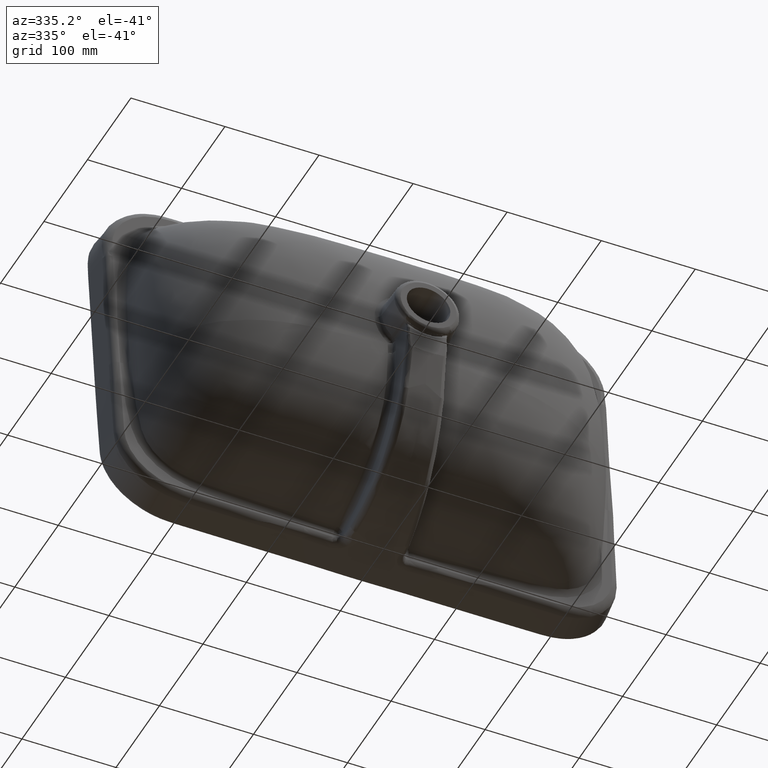
[diagram: clean part render]
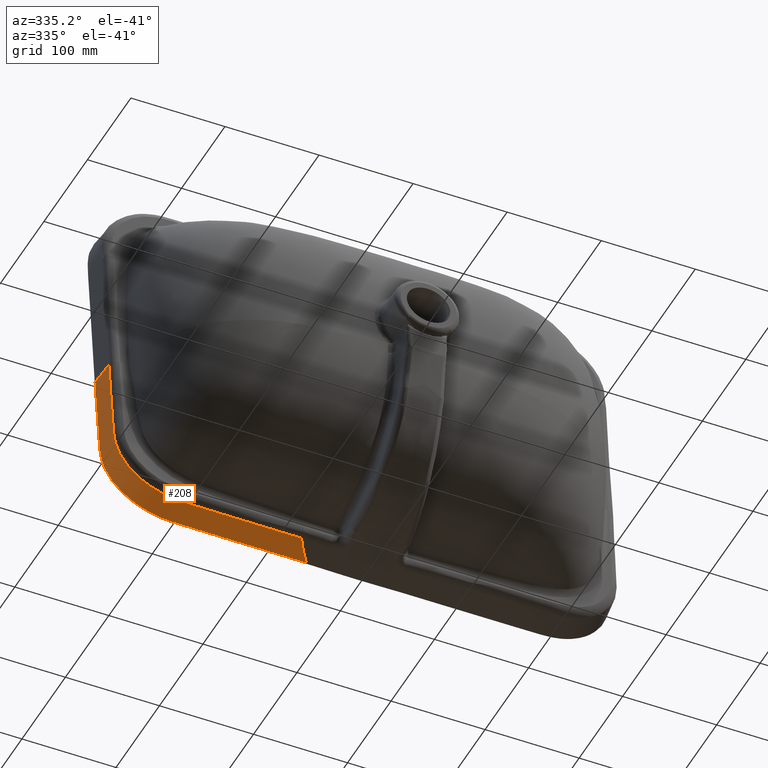
[diagram: same view with one face highlighted and labeled with its STEP entity id]
A machine part, auxiliary view. The second image highlights one B-rep face of the part: STEP entity #208.
In plain terms, the highlighted face is a freeform B-spline surface patch.
Its self-contained STEP definition (entity closure, byte-faithful):
#208=ADVANCED_FACE('',(#491),#366,.F.);
#366=B_SPLINE_SURFACE_WITH_KNOTS('',3,3,((#8555,#8556,#8557,#8558,#8559,
#8560,#8561,#8562,#8563,#8564,#8565,#8566,#8567,#8568,#8569,#8570,#8571,
#8572,#8573,#8574,#8575,#8576,#8577,#8578,#8579,#8580,#8581,#8582,#8583,
#8584,#8585,#8586,#8587,#8588,#8589,#8590,#8591,#8592,#8593,#8594,#8595,
#8596,#8597,#8598,#8599,#8600),(#8601,#8602,#8603,#8604,#8605,#8606,#8607,
#8608,#8609,#8610,#8611,#8612,#8613,#8614,#8615,#8616,#8617,#8618,#8619,
#8620,#8621,#8622,#8623,#8624,#8625,#8626,#8627,#8628,#8629,#8630,#8631,
#8632,#8633,#8634,#8635,#8636,#8637,#8638,#8639,#8640,#8641,#8642,#8643,
#8644,#8645,#8646),(#8647,#8648,#8649,#8650,#8651,#8652,#8653,#8654,#8655,
#8656,#8657,#8658,#8659,#8660,#8661,#8662,#8663,#8664,#8665,#8666,#8667,
#8668,#8669,#8670,#8671,#8672,#8673,#8674,#8675,#8676,#8677,#8678,#8679,
#8680,#8681,#8682,#8683,#8684,#8685,#8686,#8687,#8688,#8689,#8690,#8691,
#8692),(#8693,#8694,#8695,#8696,#8697,#8698,#8699,#8700,#8701,#8702,#8703,
#8704,#8705,#8706,#8707,#8708,#8709,#8710,#8711,#8712,#8713,#8714,#8715,
#8716,#8717,#8718,#8719,#8720,#8721,#8722,#8723,#8724,#8725,#8726,#8727,
#8728,#8729,#8730,#8731,#8732,#8733,#8734,#8735,#8736,#8737,#8738)),
 .UNSPECIFIED.,.F.,.F.,.F.,(4,4),(4,3,3,3,3,3,3,3,3,3,3,3,3,3,3,4),(0.,
1.),(0.,0.113841471851795,0.202707436585057,0.247140418951689,0.269356910135004,
0.29157340131832,0.336006383684951,0.380439366051582,0.469305330784844,
0.558171295518107,0.602604277884738,0.624820769068054,0.647037260251369,
0.735903224984631,0.824769189717894,1.),.UNSPECIFIED.);
#491=FACE_OUTER_BOUND('',#658,.T.);
#658=EDGE_LOOP('',(#929,#930,#931,#932));
#929=ORIENTED_EDGE('',*,*,#1961,.F.);
#930=ORIENTED_EDGE('',*,*,#1965,.T.);
#931=ORIENTED_EDGE('',*,*,#1966,.T.);
#932=ORIENTED_EDGE('',*,*,#1967,.F.);
#1700=VERTEX_POINT('',#8162);
#1701=VERTEX_POINT('',#8167);
#1702=VERTEX_POINT('',#8485);
#1703=VERTEX_POINT('',#8490);
#1961=EDGE_CURVE('',#1700,#1701,#2367,.T.);
#1965=EDGE_CURVE('',#1700,#1702,#2371,.T.);
#1966=EDGE_CURVE('',#1702,#1703,#2372,.T.);
#1967=EDGE_CURVE('',#1701,#1703,#2373,.T.);
#2367=B_SPLINE_CURVE_WITH_KNOTS('',3,(#8163,#8164,#8165,#8166),
 .UNSPECIFIED.,.F.,.F.,(4,4),(0.,1.),.UNSPECIFIED.);
#2371=B_SPLINE_CURVE_WITH_KNOTS('',3,(#8457,#8458,#8459,#8460,#8461,#8462,
#8463,#8464,#8465,#8466,#8467,#8468,#8469,#8470,#8471,#8472,#8473,#8474,
#8475,#8476,#8477,#8478,#8479,#8480,#8481,#8482,#8483,#8484),
 .UNSPECIFIED.,.F.,.F.,(4,2,2,2,2,2,2,2,2,2,2,2,2,4),(0.,0.125,0.25,0.28125,
0.3125,0.34375,0.375,0.4375,0.5,0.53125,0.562500000000001,0.625000000000001,
0.75,1.),.UNSPECIFIED.);
#2372=B_SPLINE_CURVE_WITH_KNOTS('',3,(#8486,#8487,#8488,#8489),
 .UNSPECIFIED.,.F.,.F.,(4,4),(0.,1.),.UNSPECIFIED.);
#2373=B_SPLINE_CURVE_WITH_KNOTS('',3,(#8491,#8492,#8493,#8494,#8495,#8496,
#8497,#8498,#8499,#8500,#8501,#8502,#8503,#8504,#8505,#8506,#8507,#8508,
#8509,#8510,#8511,#8512,#8513,#8514,#8515,#8516,#8517,#8518,#8519,#8520,
#8521,#8522,#8523,#8524,#8525,#8526,#8527,#8528,#8529,#8530,#8531,#8532,
#8533,#8534,#8535,#8536,#8537,#8538,#8539,#8540,#8541,#8542,#8543,#8544,
#8545,#8546,#8547,#8548,#8549,#8550,#8551,#8552,#8553,#8554),
 .UNSPECIFIED.,.F.,.F.,(4,3,3,3,3,3,3,3,3,3,3,3,3,3,3,3,3,3,3,3,3,4),(0.,
0.119738183245951,0.182614027299812,0.245489871353672,0.276927793380603,
0.308365715407533,0.324084676420998,0.339803637434463,0.371241559461394,
0.402679481488324,0.434117403515254,0.465555325542185,0.496993247569115,
0.528431169596045,0.559869091622976,0.575588052636441,0.591307013649906,
0.622744935676836,0.654182857703767,0.685620779730697,0.748496623784558,
1.),.UNSPECIFIED.);
#8162=CARTESIAN_POINT('',(-270.666545541426,-83.7650270052956,6.40828159922137));
#8163=CARTESIAN_POINT('',(-270.666545541425,-83.7650270052956,6.40828159922142));
#8164=CARTESIAN_POINT('',(-269.74517938515,-83.765026998237,-2.18492493005655));
#8165=CARTESIAN_POINT('',(-268.82381322888,-83.7650269988999,-10.7781314593345));
#8166=CARTESIAN_POINT('',(-267.902447072615,-83.7650270072841,-19.3713379886124));
#8167=CARTESIAN_POINT('',(-267.902452639837,-83.7650270101199,-19.3713385855324));
#8457=CARTESIAN_POINT('',(-270.666545541426,-83.7650270052956,6.40828159922176));
#8458=CARTESIAN_POINT('',(-270.674309589723,-69.2236112741996,6.40828177356795));
#8459=CARTESIAN_POINT('',(-270.664818720807,-54.6822440296241,6.40828163263583));
#8460=CARTESIAN_POINT('',(-270.526117770362,-25.5998459528701,6.40828152459902));
#8461=CARTESIAN_POINT('',(-270.315765389975,-11.0636207077367,6.40830054668641));
#8462=CARTESIAN_POINT('',(-270.21287748705,7.11526889921919,6.40826462704014));
#8463=CARTESIAN_POINT('',(-270.224171440184,10.7530966233166,6.40822434133488));
#8464=CARTESIAN_POINT('',(-269.891609584764,18.0059107850169,6.40831883117201));
#8465=CARTESIAN_POINT('',(-269.515964595142,21.618852715985,6.40850912436562));
#8466=CARTESIAN_POINT('',(-268.166095392366,28.8062392468214,6.40893659364012));
#8467=CARTESIAN_POINT('',(-267.181747384368,32.4193746586652,6.40921081727599));
#8468=CARTESIAN_POINT('',(-264.601748167314,39.4092180874217,6.40993638834409));
#8469=CARTESIAN_POINT('',(-263.037609951247,42.7566687283321,6.41025539627529));
#8470=CARTESIAN_POINT('',(-257.575228316996,52.3848219509918,6.4109528944646));
#8471=CARTESIAN_POINT('',(-252.825960616613,58.3028713648195,6.41129176999349));
#8472=CARTESIAN_POINT('',(-241.927889033463,68.2726044110554,6.41221513600539));
#8473=CARTESIAN_POINT('',(-235.60883533299,72.4553309740522,6.41277084967195));
#8474=CARTESIAN_POINT('',(-225.553606640994,77.1343699451603,6.41298701371356));
#8475=CARTESIAN_POINT('',(-222.09440984863,78.4435699712544,6.41294158184629));
#8476=CARTESIAN_POINT('',(-214.953628350956,80.5435742694845,6.41278563707318));
#8477=CARTESIAN_POINT('',(-211.279420030817,81.3218334568945,6.41273761494005));
#8478=CARTESIAN_POINT('',(-200.337270487939,82.7717361009534,6.41292928291443));
#8479=CARTESIAN_POINT('',(-193.014647153608,82.7054867479508,6.41280108006652));
#8480=CARTESIAN_POINT('',(-171.052611122274,82.7230444660742,6.41280521789457));
#8481=CARTESIAN_POINT('',(-156.414493701561,82.8548764111963,6.41281640679837));
#8482=CARTESIAN_POINT('',(-112.492309247166,82.959978574201,6.4128166603026));
#8483=CARTESIAN_POINT('',(-83.2092846077133,82.9493790632545,6.41281629749348));
#8484=CARTESIAN_POINT('',(-53.9268646740659,82.9473609098091,6.41281631165607));
#8485=CARTESIAN_POINT('',(-53.926525442944,82.9473599422791,6.41281758508996));
#8486=CARTESIAN_POINT('',(-53.9267205460793,82.9473784647662,6.41298373256873));
#8487=CARTESIAN_POINT('',(-59.4697813501899,82.2722290070181,-0.0258891858707982));
#8488=CARTESIAN_POINT('',(-65.1344053927425,81.3718169060609,-8.61500698249011));
#8489=CARTESIAN_POINT('',(-70.9200883722619,80.2454962937917,-19.3543696574589));
#8490=CARTESIAN_POINT('',(-70.9224597435606,80.2456273057072,-19.3531078580575));
#8491=CARTESIAN_POINT('',(-267.902447177191,-83.7650270073387,-19.3713379998251));
#8492=CARTESIAN_POINT('',(-267.909232148961,-71.0658299576927,-19.3713374185155));
#8493=CARTESIAN_POINT('',(-267.901081376627,-58.3615733694927,-19.3713369319198));
#8494=CARTESIAN_POINT('',(-267.854521342236,-45.6528061765984,-19.3713377946432));
#8495=CARTESIAN_POINT('',(-267.830072153329,-38.979291993609,-19.3713382476688));
#8496=CARTESIAN_POINT('',(-267.792230830486,-32.3010695390893,-19.3713380791787));
#8497=CARTESIAN_POINT('',(-267.740202059008,-25.6252022055257,-19.371338085424));
#8498=CARTESIAN_POINT('',(-267.68817328753,-18.9493348719621,-19.3713380916694));
#8499=CARTESIAN_POINT('',(-267.615069515998,-12.2661868253253,-19.3713251759906));
#8500=CARTESIAN_POINT('',(-267.547260111999,-5.6125643795333,-19.3713321391007));
#8501=CARTESIAN_POINT('',(-267.51335541,-2.28575315663731,-19.3713356206558));
#8502=CARTESIAN_POINT('',(-267.481158008631,1.02241004668787,-19.3713437688214));
#8503=CARTESIAN_POINT('',(-267.46462652949,4.34268601224635,-19.371387551015));
#8504=CARTESIAN_POINT('',(-267.44809505035,7.66296197780484,-19.3714313332085));
#8505=CARTESIAN_POINT('',(-267.456285322168,11.0789304060905,-19.371571043497));
#8506=CARTESIAN_POINT('',(-267.275302273507,14.6978111385538,-19.3713401543624));
#8507=CARTESIAN_POINT('',(-267.184810749177,16.5072515047855,-19.3712247097952));
#8508=CARTESIAN_POINT('',(-267.038128634579,18.3779591985422,-19.3709949691726));
#8509=CARTESIAN_POINT('',(-266.81263377611,20.248558410447,-19.3706100286551));
#8510=CARTESIAN_POINT('',(-266.58713891764,22.1191576223517,-19.3702250881376));
#8511=CARTESIAN_POINT('',(-266.287337194617,23.9873748068763,-19.3697557471228));
#8512=CARTESIAN_POINT('',(-265.907972337498,25.8377067308683,-19.3692894813439));
#8513=CARTESIAN_POINT('',(-265.149242623258,29.5383705788524,-19.368356949786));
#8514=CARTESIAN_POINT('',(-264.055657810633,33.1858412184743,-19.366928644566));
#8515=CARTESIAN_POINT('',(-262.65014520466,36.6941506864873,-19.3654282663267));
#8516=CARTESIAN_POINT('',(-261.244632598687,40.2024601545003,-19.3639278880874));
#8517=CARTESIAN_POINT('',(-259.507832670931,43.6302154027581,-19.362740876654));
#8518=CARTESIAN_POINT('',(-257.521250437187,46.8412716749586,-19.3618343199423));
#8519=CARTESIAN_POINT('',(-255.534668203441,50.052327947159,-19.3609277632307));
#8520=CARTESIAN_POINT('',(-253.302685804615,53.0563751257732,-19.36015601964));
#8521=CARTESIAN_POINT('',(-250.835611656679,55.8714388373653,-19.3592793931156));
#8522=CARTESIAN_POINT('',(-248.368537508744,58.6865025489574,-19.3584027665913));
#8523=CARTESIAN_POINT('',(-245.637565382006,61.3343714881497,-19.3574138367319));
#8524=CARTESIAN_POINT('',(-242.729351243435,63.7250206270336,-19.3564137404042));
#8525=CARTESIAN_POINT('',(-239.821137104864,66.1156697659174,-19.3554136440765));
#8526=CARTESIAN_POINT('',(-236.744183046911,68.2440162332182,-19.3544375010942));
#8527=CARTESIAN_POINT('',(-233.524546333516,70.1171785494108,-19.3536738977449));
#8528=CARTESIAN_POINT('',(-230.304909620122,71.9903408656036,-19.3529102943955));
#8529=CARTESIAN_POINT('',(-226.913245573059,73.6234633404783,-19.3525015383323));
#8530=CARTESIAN_POINT('',(-223.406344188699,74.981799880481,-19.3525624465847));
#8531=CARTESIAN_POINT('',(-219.899442804339,76.3401364204838,-19.3526233548373));
#8532=CARTESIAN_POINT('',(-216.324448529926,77.4093986510459,-19.3531520171562));
#8533=CARTESIAN_POINT('',(-212.675352553915,78.1914037613065,-19.3533187218398));
#8534=CARTESIAN_POINT('',(-210.85080456591,78.5824063164368,-19.3534020741816));
#8535=CARTESIAN_POINT('',(-208.98689711353,78.9012970152694,-19.353291612592));
#8536=CARTESIAN_POINT('',(-207.146591867928,79.1423279534969,-19.3531567339395));
#8537=CARTESIAN_POINT('',(-205.306286622326,79.3833588917243,-19.353021855287));
#8538=CARTESIAN_POINT('',(-203.483603361369,79.5534281735536,-19.3529104366025));
#8539=CARTESIAN_POINT('',(-201.679600637026,79.6764029177076,-19.35287755244));
#8540=CARTESIAN_POINT('',(-198.071595188341,79.9223524060156,-19.3528117841151));
#8541=CARTESIAN_POINT('',(-194.574088507294,79.9811648386473,-19.3530527019172));
#8542=CARTESIAN_POINT('',(-191.165373372191,79.9997578405639,-19.3531261728469));
#8543=CARTESIAN_POINT('',(-187.756658237087,80.0183508424806,-19.3531996437767));
#8544=CARTESIAN_POINT('',(-184.45555251667,80.0056738950164,-19.3531631762976));
#8545=CARTESIAN_POINT('',(-181.135236081731,80.0182208115442,-19.3531372579475));
#8546=CARTESIAN_POINT('',(-177.814919646792,80.0307677280721,-19.3531113395974));
#8547=CARTESIAN_POINT('',(-174.470125586809,80.052125345471,-19.3531076424417));
#8548=CARTESIAN_POINT('',(-171.130500230903,80.0696170708547,-19.3531035063819));
#8549=CARTESIAN_POINT('',(-164.45124951909,80.1046005216221,-19.3530952342623));
#8550=CARTESIAN_POINT('',(-157.768843816579,80.1375312367512,-19.3531044638396));
#8551=CARTESIAN_POINT('',(-151.08321233152,80.1605371498217,-19.3531068468906));
#8552=CARTESIAN_POINT('',(-124.340686391287,80.2525608021039,-19.3531163790949));
#8553=CARTESIAN_POINT('',(-97.634830025029,80.2474513445473,-19.3531078916626));
#8554=CARTESIAN_POINT('',(-70.922458687225,80.2456288221417,-19.3531079963655));
#8555=CARTESIAN_POINT('',(-270.902577873967,-85.8894505463076,8.62150033560293));
#8556=CARTESIAN_POINT('',(-270.911544839436,-72.2921580749731,8.62150008518038));
#8557=CARTESIAN_POINT('',(-270.904864842031,-58.6965475483148,8.62149983671416));
#8558=CARTESIAN_POINT('',(-270.853907589106,-45.1040770432886,8.62150039041045));
#8559=CARTESIAN_POINT('',(-270.814129770288,-34.4936379397772,8.62150082263216));
#8560=CARTESIAN_POINT('',(-270.739779977542,-23.8895920790298,8.62150111697606));
#8561=CARTESIAN_POINT('',(-270.629466460531,-13.2782464702382,8.62150074560675));
#8562=CARTESIAN_POINT('',(-270.574309702025,-7.97257366584244,8.6215005599221));
#8563=CARTESIAN_POINT('',(-270.512663061042,-2.66401303985864,8.6215003081944));
#8564=CARTESIAN_POINT('',(-270.475924539896,2.65390353066818,8.62151493791302));
#8565=CARTESIAN_POINT('',(-270.457555279323,5.31286181593154,8.62152225277233));
#8566=CARTESIAN_POINT('',(-270.458771271622,7.97103365723528,8.62154172759522));
#8567=CARTESIAN_POINT('',(-270.411666390694,10.5879246255769,8.62154920162059));
#8568=CARTESIAN_POINT('',(-270.364561509765,13.2048155939184,8.62155667564595));
#8569=CARTESIAN_POINT('',(-270.262786981318,15.7844021890817,8.62152997240225));
#8570=CARTESIAN_POINT('',(-270.030125919131,18.3410219163225,8.62142606391505));
#8571=CARTESIAN_POINT('',(-269.564803794756,23.4542613708042,8.62121824694065));
#8572=CARTESIAN_POINT('',(-268.593971804266,28.4877336624857,8.62099267746056));
#8573=CARTESIAN_POINT('',(-267.027883080592,33.3480669991214,8.62053010883925));
#8574=CARTESIAN_POINT('',(-265.461794356917,38.2084003357572,8.62006754021794));
#8575=CARTESIAN_POINT('',(-263.328763347925,42.9027045718528,8.61970212392811));
#8576=CARTESIAN_POINT('',(-260.702329337894,47.3179797789588,8.61968330317989));
#8577=CARTESIAN_POINT('',(-255.449461317833,56.1485301931706,8.61964566168345));
#8578=CARTESIAN_POINT('',(-248.214357673707,63.8447550625709,8.61980213855295));
#8579=CARTESIAN_POINT('',(-239.665757796556,69.7079620223015,8.61982299166576));
#8580=CARTESIAN_POINT('',(-231.117157919406,75.5711689820323,8.61984384477856));
#8581=CARTESIAN_POINT('',(-221.244950080285,79.662663633708,8.62105582980689));
#8582=CARTESIAN_POINT('',(-210.998820414697,81.5147332476333,8.62136330355703));
#8583=CARTESIAN_POINT('',(-205.875755581902,82.4407680545959,8.6215170404321));
#8584=CARTESIAN_POINT('',(-200.606211293219,82.771531417747,8.62134592973647));
#8585=CARTESIAN_POINT('',(-195.259922192667,82.8839858902084,8.62144957496989));
#8586=CARTESIAN_POINT('',(-192.586777642392,82.940213126439,8.6215013975866));
#8587=CARTESIAN_POINT('',(-189.894990441229,82.9427378876406,8.62152349525295));
#8588=CARTESIAN_POINT('',(-187.184834131475,82.9425446878712,8.62152209182616));
#8589=CARTESIAN_POINT('',(-184.474677821722,82.9423514881019,8.62152068839936));
#8590=CARTESIAN_POINT('',(-181.749167561052,82.9484225634171,8.62151181321788));
#8591=CARTESIAN_POINT('',(-179.033621912237,82.9627768786025,8.62150663039587));
#8592=CARTESIAN_POINT('',(-168.17143931698,83.0201941393442,8.6214858991078));
#8593=CARTESIAN_POINT('',(-157.342054415973,83.0803602120352,8.62150047007973));
#8594=CARTESIAN_POINT('',(-146.495328321226,83.1096228827014,8.62150033668402));
#8595=CARTESIAN_POINT('',(-135.648602226479,83.1388855533675,8.62150020328832));
#8596=CARTESIAN_POINT('',(-124.801512228182,83.1564215554783,8.62150026780207));
#8597=CARTESIAN_POINT('',(-113.954038387319,83.1667665087021,8.62150035562065));
#8598=CARTESIAN_POINT('',(-92.5643912220188,83.1871652580003,8.62150052878615));
#8599=CARTESIAN_POINT('',(-71.173251588869,83.179602694362,8.62150063294498));
#8600=CARTESIAN_POINT('',(-49.7804668606349,83.178864969399,8.62150062776261));
#8601=CARTESIAN_POINT('',(-269.895906580003,-85.889350234052,-0.767311239721209));
#8602=CARTESIAN_POINT('',(-269.904874146241,-72.2929289415073,-0.767311490156027));
#8603=CARTESIAN_POINT('',(-269.898196058277,-58.6991355596706,-0.767311738630577));
#8604=CARTESIAN_POINT('',(-269.847246779485,-45.1086354683561,-0.767311184907554));
#8605=CARTESIAN_POINT('',(-269.807475185367,-34.4997344924935,-0.767310752664981));
#8606=CARTESIAN_POINT('',(-269.733142437241,-23.8979558057475,-0.767310458383346));
#8607=CARTESIAN_POINT('',(-269.622836594638,-13.2873261077849,-0.767310829690491));
#8608=CARTESIAN_POINT('',(-269.567683673336,-7.98201125880355,-0.767311015344064));
#8609=CARTESIAN_POINT('',(-269.506019122101,-2.66837614176061,-0.767311301657439));
#8610=CARTESIAN_POINT('',(-269.469274473015,2.64130623338484,-0.767296613694668));
#8611=CARTESIAN_POINT('',(-269.450902148472,5.29614742095747,-0.767289269713283));
#8612=CARTESIAN_POINT('',(-269.451979105867,7.94590757735998,-0.76726995233736));
#8613=CARTESIAN_POINT('',(-269.405395981361,10.5489733929677,-0.767263146186351));
#8614=CARTESIAN_POINT('',(-269.358812856855,13.1520392085754,-0.767256340035343));
#8615=CARTESIAN_POINT('',(-269.258276201234,15.7122859118549,-0.767283072781015));
#8616=CARTESIAN_POINT('',(-269.028564840066,18.2435204917174,-0.767386423936295));
#8617=CARTESIAN_POINT('',(-268.569142117729,23.3059896514426,-0.767593126246853));
#8618=CARTESIAN_POINT('',(-267.611238074188,28.2689955403196,-0.767818555927675));
#8619=CARTESIAN_POINT('',(-266.067756866347,33.061337143754,-0.768281081453491));
#8620=CARTESIAN_POINT('',(-264.524275658506,37.8536787471884,-0.768743606979305));
#8621=CARTESIAN_POINT('',(-262.422687534228,42.4789548308366,-0.769109570085536));
#8622=CARTESIAN_POINT('',(-259.83400676279,46.830045327762,-0.769128416629741));
#8623=CARTESIAN_POINT('',(-254.656645219914,55.5322263216125,-0.769166109718153));
#8624=CARTESIAN_POINT('',(-247.520711275281,63.1231049637891,-0.769009477862939));
#8625=CARTESIAN_POINT('',(-239.093122020886,68.9037294682938,-0.768988616701772));
#8626=CARTESIAN_POINT('',(-230.665532766492,74.6843539727984,-0.768967755540606));
#8627=CARTESIAN_POINT('',(-220.936668411756,78.7181555711118,-0.767754927433979));
#8628=CARTESIAN_POINT('',(-210.815044933874,80.5466666149089,-0.767448315871543));
#8629=CARTESIAN_POINT('',(-205.754233194933,81.4609221368073,-0.767295010090323));
#8630=CARTESIAN_POINT('',(-200.541316275707,81.7885053845788,-0.767466764561666));
#8631=CARTESIAN_POINT('',(-195.222955635131,81.8996604064466,-0.76736272439543));
#8632=CARTESIAN_POINT('',(-192.563775314844,81.9552379173804,-0.767310704312312));
#8633=CARTESIAN_POINT('',(-189.87992478691,81.9576542147123,-0.767288175428465));
#8634=CARTESIAN_POINT('',(-187.174533327803,81.9574589413137,-0.767289486687311));
#8635=CARTESIAN_POINT('',(-184.469141868696,81.957263667915,-0.767290797946159));
#8636=CARTESIAN_POINT('',(-181.745322032933,81.9633757138904,-0.767299764832433));
#8637=CARTESIAN_POINT('',(-179.03020172874,81.9777402633414,-0.767304948138818));
#8638=CARTESIAN_POINT('',(-168.169720511965,82.0351984611457,-0.767325681364363));
#8639=CARTESIAN_POINT('',(-157.337395868801,82.0953472541824,-0.767311105230399));
#8640=CARTESIAN_POINT('',(-146.491536313071,82.1246072399366,-0.76731123863142));
#8641=CARTESIAN_POINT('',(-135.645676757341,82.1538672256908,-0.76731137203244));
#8642=CARTESIAN_POINT('',(-124.799325254282,82.1714015151935,-0.767311307515907));
#8643=CARTESIAN_POINT('',(-113.952442186548,82.1817453793446,-0.767311219693862));
#8644=CARTESIAN_POINT('',(-92.563959940287,82.2021419811494,-0.767311046521507));
#8645=CARTESIAN_POINT('',(-71.1734108427857,82.1945796944512,-0.767310942359242));
#8646=CARTESIAN_POINT('',(-49.780491492695,82.1938419989076,-0.767310947541574));
#8647=CARTESIAN_POINT('',(-268.889235286038,-85.8892499217563,-10.1561228150453));
#8648=CARTESIAN_POINT('',(-268.898203453046,-72.2936998079603,-10.1561230654924));
#8649=CARTESIAN_POINT('',(-268.891527274524,-58.7017235708986,-10.1561233139753));
#8650=CARTESIAN_POINT('',(-268.840585969864,-45.1131938933738,-10.1561227602255));
#8651=CARTESIAN_POINT('',(-268.800820600446,-34.5058310452205,-10.1561223279621));
#8652=CARTESIAN_POINT('',(-268.726504896941,-23.9063195325139,-10.1561220337427));
#8653=CARTESIAN_POINT('',(-268.616206728744,-13.2964057453197,-10.1561224049877));
#8654=CARTESIAN_POINT('',(-268.561057644646,-7.99144885172256,-10.1561225906102));
#8655=CARTESIAN_POINT('',(-268.49937518277,-2.67273912455707,-10.1561229118084));
#8656=CARTESIAN_POINT('',(-268.462624407715,2.62870878935761,-10.156108165261));
#8657=CARTESIAN_POINT('',(-268.444249020187,5.27943274631484,-10.1561007919873));
#8658=CARTESIAN_POINT('',(-268.445186979281,7.92078114311454,-10.1560816273451));
#8659=CARTESIAN_POINT('',(-268.39912553405,10.5100265794476,-10.1560755115842));
#8660=CARTESIAN_POINT('',(-268.353064088819,13.0992720157806,-10.1560693958232));
#8661=CARTESIAN_POINT('',(-268.25376468629,15.6401875974164,-10.1560961916929));
#8662=CARTESIAN_POINT('',(-268.027002272674,18.1460380637128,-10.1561989680691));
#8663=CARTESIAN_POINT('',(-267.573477445441,23.1577389963057,-10.1564045208215));
#8664=CARTESIAN_POINT('',(-266.628500306841,28.0502738154661,-10.156629788114));
#8665=CARTESIAN_POINT('',(-265.107626391232,32.7746207364001,-10.157092264538));
#8666=CARTESIAN_POINT('',(-263.586752475623,37.498967657334,-10.157554740962));
#8667=CARTESIAN_POINT('',(-261.516612758201,42.055202172874,-10.1579212684356));
#8668=CARTESIAN_POINT('',(-258.965688333277,46.3421039459202,-10.1579401449792));
#8669=CARTESIAN_POINT('',(-253.86383948343,54.9159074920125,-10.1579778980664));
#8670=CARTESIAN_POINT('',(-246.827057739067,62.4014604280648,-10.1578210980876));
#8671=CARTESIAN_POINT('',(-238.520483162431,68.0994990338964,-10.1578002269717));
#8672=CARTESIAN_POINT('',(-230.213908585794,73.7975376397279,-10.1577793558558));
#8673=CARTESIAN_POINT('',(-220.628394608717,77.7736446216296,-10.1565656580906));
#8674=CARTESIAN_POINT('',(-210.631279201837,79.5785982619653,-10.1562599420855));
#8675=CARTESIAN_POINT('',(-205.632721498396,80.4810750821331,-10.156107084083));
#8676=CARTESIAN_POINT('',(-200.476433498018,80.8054790841497,-10.1562795017492));
#8677=CARTESIAN_POINT('',(-195.185994975525,80.9153348720809,-10.1561750444786));
#8678=CARTESIAN_POINT('',(-192.540775714278,80.9702627660465,-10.1561228158433));
#8679=CARTESIAN_POINT('',(-189.864859537953,80.9725705419442,-10.1560998466526));
#8680=CARTESIAN_POINT('',(-187.164232537747,80.9723731947588,-10.1561010652183));
#8681=CARTESIAN_POINT('',(-184.46360553754,80.9721758475733,-10.1561022837841));
#8682=CARTESIAN_POINT('',(-181.741476482442,80.9783288646847,-10.1561113429137));
#8683=CARTESIAN_POINT('',(-179.026781539216,80.9927036482012,-10.1561165266862));
#8684=CARTESIAN_POINT('',(-168.168001766311,81.0502027822677,-10.1561372617765));
#8685=CARTESIAN_POINT('',(-157.33273732164,81.1103342963298,-10.1561226805405));
#8686=CARTESIAN_POINT('',(-146.487744304938,81.139591597172,-10.1561228139468));
#8687=CARTESIAN_POINT('',(-135.642751288236,81.1688488980143,-10.1561229473532));
#8688=CARTESIAN_POINT('',(-124.797138280411,81.1863814749089,-10.1561228828339));
#8689=CARTESIAN_POINT('',(-113.950845985801,81.1967242499875,-10.1561227950083));
#8690=CARTESIAN_POINT('',(-92.5635286585653,81.2171187042987,-10.1561226218291));
#8691=CARTESIAN_POINT('',(-71.1735700967031,81.2095566945404,-10.1561225176634));
#8692=CARTESIAN_POINT('',(-49.7805161247553,81.2088190284164,-10.1561225228457));
#8693=CARTESIAN_POINT('',(-267.882563992074,-85.8891496094204,-19.5449343903694));
#8694=CARTESIAN_POINT('',(-267.891532759851,-72.2944706743319,-19.5449346408287));
#8695=CARTESIAN_POINT('',(-267.884858490769,-58.7043115819987,-19.5449348893199));
#8696=CARTESIAN_POINT('',(-267.833925160243,-45.1177523183412,-19.5449343355434));
#8697=CARTESIAN_POINT('',(-267.794166015525,-34.5119275979581,-19.5449339032591));
#8698=CARTESIAN_POINT('',(-267.71986735664,-23.9146832593288,-19.544933609102));
#8699=CARTESIAN_POINT('',(-267.609576862851,-13.3054853828426,-19.5449339802848));
#8700=CARTESIAN_POINT('',(-267.554431615956,-8.00088644459958,-19.5449341658762));
#8701=CARTESIAN_POINT('',(-267.492731243002,-2.67710198387199,-19.5449345222621));
#8702=CARTESIAN_POINT('',(-267.455974344024,2.61611119651841,-19.5449197167864));
#8703=CARTESIAN_POINT('',(-267.437595894535,5.26271778671358,-19.5449123140485));
#8704=CARTESIAN_POINT('',(-267.43839489226,7.895654278189,-19.5448932966954));
#8705=CARTESIAN_POINT('',(-267.392855049093,10.4710844044609,-19.5448878957214));
#8706=CARTESIAN_POINT('',(-267.347315205927,13.0465145307328,-19.5448824947475));
#8707=CARTESIAN_POINT('',(-267.249252413812,15.5681086485899,-19.5449093934366));
#8708=CARTESIAN_POINT('',(-267.025438102651,18.0485764034617,-19.5450115767476));
#8709=CARTESIAN_POINT('',(-266.57780948033,23.0095119132054,-19.5452159433695));
#8710=CARTESIAN_POINT('',(-265.645757992011,27.8315706384092,-19.5454410207451));
#8711=CARTESIAN_POINT('',(-264.147491090479,32.4879195930486,-19.5459034406952));
#8712=CARTESIAN_POINT('',(-262.649224188947,37.1442685476879,-19.5463658606453));
#8713=CARTESIAN_POINT('',(-260.610539169822,41.6314461801664,-19.5467329716404));
#8714=CARTESIAN_POINT('',(-258.09737463249,45.8541546647661,-19.5467518834602));
#8715=CARTESIAN_POINT('',(-253.071045557827,54.2995716339655,-19.5467897070997));
#8716=CARTESIAN_POINT('',(-246.133396097179,61.6798222133567,-19.5466327229648));
#8717=CARTESIAN_POINT('',(-237.947840801497,67.2952710084982,-19.5466118394883));
#8718=CARTESIAN_POINT('',(-229.762285505816,72.9107198036397,-19.5465909560118));
#8719=CARTESIAN_POINT('',(-220.320129778778,76.8291304198283,-19.5453763595937));
#8720=CARTESIAN_POINT('',(-210.44752434378,78.6105279955945,-19.5450715765327));
#8721=CARTESIAN_POINT('',(-205.511221626282,79.5012267834775,-19.5449191850023));
#8722=CARTESIAN_POINT('',(-200.411563722528,79.8224525119853,-19.5450922857579));
#8723=CARTESIAN_POINT('',(-195.149040500408,79.931009288428,-19.5449873867641));
#8724=CARTESIAN_POINT('',(-192.517778889349,79.9852876766493,-19.5449349372672));
#8725=CARTESIAN_POINT('',(-189.849794701056,79.9874868693418,-19.5449115184287));
#8726=CARTESIAN_POINT('',(-187.153931761528,79.9872874482063,-19.5449126437672));
#8727=CARTESIAN_POINT('',(-184.458068822,79.9870880270707,-19.5449137691057));
#8728=CARTESIAN_POINT('',(-181.73763090953,79.9932820158008,-19.5449229210259));
#8729=CARTESIAN_POINT('',(-179.023361343657,80.0076670331818,-19.5449281052464));
#8730=CARTESIAN_POINT('',(-168.166283080168,80.0652071027061,-19.5449488421282));
#8731=CARTESIAN_POINT('',(-157.32807877449,80.1253213384769,-19.5449342558505));
#8732=CARTESIAN_POINT('',(-146.483952296826,80.1545759544071,-19.5449343892622));
#8733=CARTESIAN_POINT('',(-135.639825819163,80.1838305703374,-19.5449345226738));
#8734=CARTESIAN_POINT('',(-124.794951306569,80.2013614346241,-19.5449344581517));
#8735=CARTESIAN_POINT('',(-113.949249785076,80.21170312063,-19.5449343703227));
#8736=CARTESIAN_POINT('',(-92.5630973768536,80.2320954274477,-19.5449341971367));
#8737=CARTESIAN_POINT('',(-71.1737293506213,80.2245336946293,-19.5449340929675));
#8738=CARTESIAN_POINT('',(-49.7805407568156,80.2237960579249,-19.5449340981498));